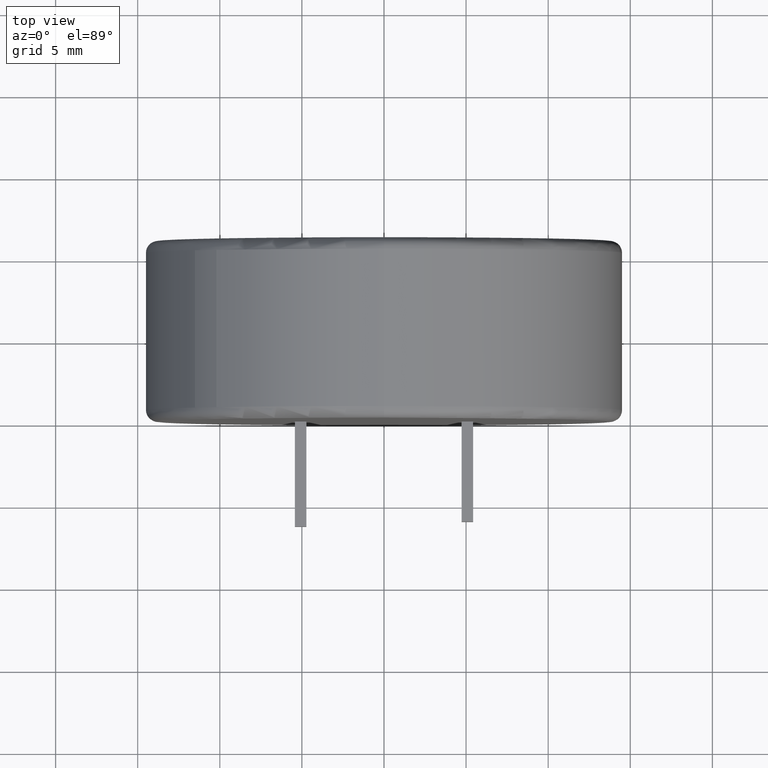
[diagram: clean part render]
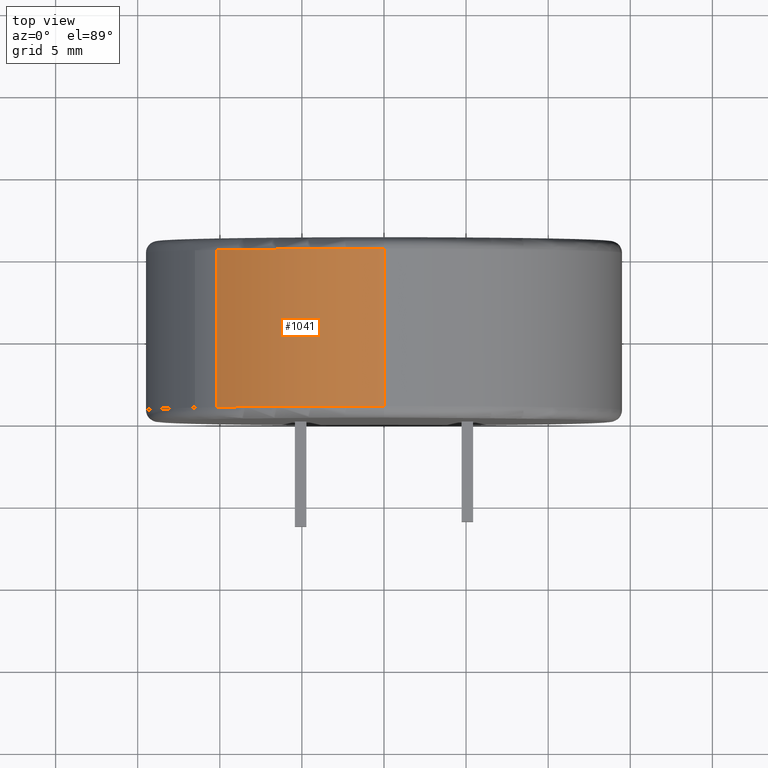
[diagram: same view with one face highlighted and labeled with its STEP entity id]
A machine part, top view. The second image highlights one B-rep face of the part: STEP entity #1041.
In plain terms, the highlighted cylindrical surface (partial cylindrical patch) has radius 14.5 mm, axis along (-0, -1, -0).
Its self-contained STEP definition (entity closure, byte-faithful):
#71 = CARTESIAN_POINT ( 'NONE',  ( 0.0000000000000000000, 10.29050000000000000, 0.0000000000000000000 ) ) ;
#117 = CIRCLE ( 'NONE', #623, 14.50000000000000000 ) ;
#161 = EDGE_CURVE ( 'NONE', #2461, #2724, #586, .T. ) ;
#189 = DIRECTION ( 'NONE',  ( 0.0000000000000000000, 1.000000000000000000, 0.0000000000000000000 ) ) ;
#300 = CARTESIAN_POINT ( 'NONE',  ( -10.18367954714648200, 0.7095000000000000200, 10.32195092417273900 ) ) ;
#514 = EDGE_CURVE ( 'NONE', #2135, #1482, #117, .T. ) ;
#554 = DIRECTION ( 'NONE',  ( 0.0000000000000000000, 1.000000000000000000, 0.0000000000000000000 ) ) ;
#566 = CARTESIAN_POINT ( 'NONE',  ( -10.18367954714648200, 0.7095000000000000200, 10.32195092417273800 ) ) ;
#586 = CIRCLE ( 'NONE', #1849, 14.50000000000000000 ) ;
#623 = AXIS2_PLACEMENT_3D ( 'NONE', #71, #2232, #1149 ) ;
#629 = AXIS2_PLACEMENT_3D ( 'NONE', #1201, #976, #2476 ) ;
#976 = DIRECTION ( 'NONE',  ( -0.0000000000000000000, -1.000000000000000000, -0.0000000000000000000 ) ) ;
#979 = VECTOR ( 'NONE', #189, 1000.000000000000000 ) ;
#1041 = ADVANCED_FACE ( 'NONE', ( #2591 ), #2214, .T. ) ;
#1042 = EDGE_CURVE ( 'NONE', #2135, #2724, #2143, .T. ) ;
#1106 = LINE ( 'NONE', #566, #979 ) ;
#1108 = CARTESIAN_POINT ( 'NONE',  ( 1.775737858763662000E-015, 0.7095000000000000200, 14.50000000000000000 ) ) ;
#1149 = DIRECTION ( 'NONE',  ( 0.0000000000000000000, 0.0000000000000000000, 1.000000000000000000 ) ) ;
#1194 = DIRECTION ( 'NONE',  ( -0.0000000000000000000, -1.000000000000000000, -0.0000000000000000000 ) ) ;
#1200 = ORIENTED_EDGE ( 'NONE', *, *, #161, .T. ) ;
#1201 = CARTESIAN_POINT ( 'NONE',  ( 0.0000000000000000000, 11.00000000000000000, 0.0000000000000000000 ) ) ;
#1263 = ORIENTED_EDGE ( 'NONE', *, *, #1042, .F. ) ;
#1407 = CARTESIAN_POINT ( 'NONE',  ( 1.775737858763662000E-015, 11.00000000000000000, 14.50000000000000000 ) ) ;
#1482 = VERTEX_POINT ( 'NONE', #2593 ) ;
#1517 = ORIENTED_EDGE ( 'NONE', *, *, #1681, .F. ) ;
#1681 = EDGE_CURVE ( 'NONE', #2461, #1482, #1106, .T. ) ;
#1827 = EDGE_LOOP ( 'NONE', ( #1263, #2381, #1517, #1200 ) ) ;
#1849 = AXIS2_PLACEMENT_3D ( 'NONE', #2689, #554, #2229 ) ;
#1888 = CARTESIAN_POINT ( 'NONE',  ( 1.775737858763662000E-015, 10.29050000000000000, 14.50000000000000000 ) ) ;
#2135 = VERTEX_POINT ( 'NONE', #1888 ) ;
#2143 = LINE ( 'NONE', #1407, #2564 ) ;
#2214 = CYLINDRICAL_SURFACE ( 'NONE', #629, 14.50000000000000000 ) ;
#2229 = DIRECTION ( 'NONE',  ( 0.0000000000000000000, 0.0000000000000000000, 1.000000000000000000 ) ) ;
#2232 = DIRECTION ( 'NONE',  ( -0.0000000000000000000, -1.000000000000000000, -0.0000000000000000000 ) ) ;
#2381 = ORIENTED_EDGE ( 'NONE', *, *, #514, .T. ) ;
#2461 = VERTEX_POINT ( 'NONE', #300 ) ;
#2476 = DIRECTION ( 'NONE',  ( 0.0000000000000000000, 0.0000000000000000000, -1.000000000000000000 ) ) ;
#2564 = VECTOR ( 'NONE', #1194, 1000.000000000000000 ) ;
#2591 = FACE_OUTER_BOUND ( 'NONE', #1827, .T. ) ;
#2593 = CARTESIAN_POINT ( 'NONE',  ( -10.18367954714648200, 10.29050000000000000, 10.32195092417273800 ) ) ;
#2689 = CARTESIAN_POINT ( 'NONE',  ( 0.0000000000000000000, 0.7095000000000000200, 0.0000000000000000000 ) ) ;
#2724 = VERTEX_POINT ( 'NONE', #1108 ) ;